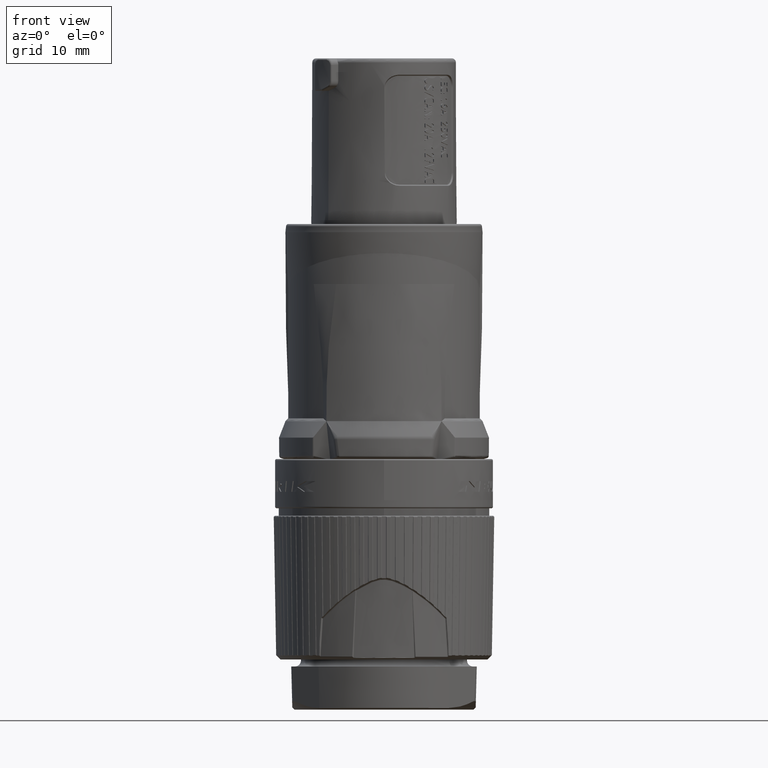
[diagram: clean part render]
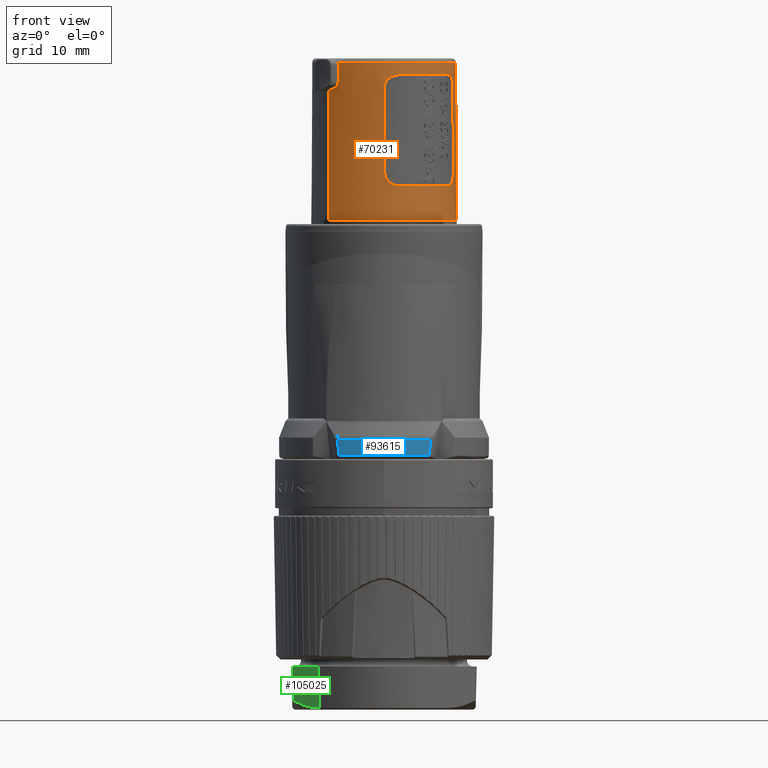
[diagram: same view with three faces highlighted in distinct colors, each labeled with its STEP entity id]
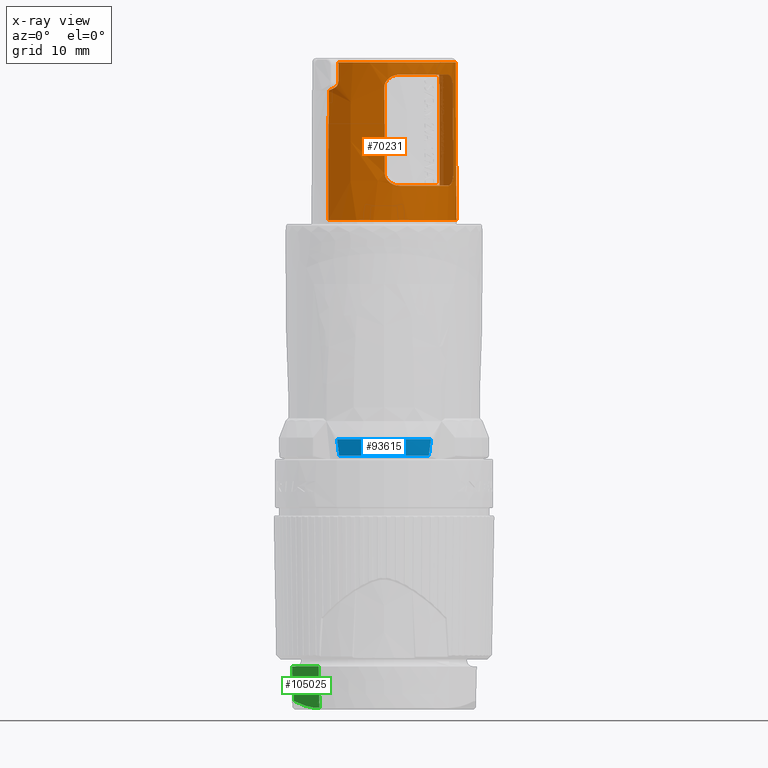
[diagram: x-ray of the same camera — body ghosted, the three highlighted faces saturated]
A machine part, front view with three faces highlighted in distinct colors.
The next image is the same camera in x-ray (body ghosted, the three faces saturated) — at least one of them is partly hidden behind the body in this view.
Their STEP definitions:

[orange] entity #70231 — the highlighted conical surface has half-angle 0.291 deg.
#14179=DIRECTION('',(-3.888500381793E-3,-3.262839236016E-3,9.999871166395E-1));
#14180=VECTOR('',#14179,1.920278543477E1);
#14181=CARTESIAN_POINT('',(6.779493321603E0,5.688670345726E0,4.375E1));
#14182=LINE('',#14181,#14180);
#14223=DIRECTION('',(3.888500375087E-3,3.262839230569E-3,9.999871166395E-1));
#14224=VECTOR('',#14223,1.575020291554E1);
#14225=CARTESIAN_POINT('',(-6.779493321603E0,-5.688670345726E0,4.375E1));
#14226=LINE('',#14225,#14224);
#15667=CARTESIAN_POINT('',(-6.718248651658E0,-5.637279965764E0,5.95E1));
#15668=CARTESIAN_POINT('',(-6.486914233155E0,-5.911941423735E0,
5.963070235955E1));
#15669=CARTESIAN_POINT('',(-6.239539094507E0,-6.171539255051E0,
5.976095753386E1));
#15670=CARTESIAN_POINT('',(-5.976079682787E0,-6.416032559735E0,
5.989076430876E1));
#15672=CARTESIAN_POINT('',(-5.572518550833E0,-6.764549923664E0,
6.064251840539E1));
#15673=CARTESIAN_POINT('',(-5.569872010561E0,-6.762329212698E0,
6.131167893729E1));
#15674=CARTESIAN_POINT('',(-5.567225417244E0,-6.760108457222E0,
6.198083946882E1));
#15675=CARTESIAN_POINT('',(-5.564578770691E0,-6.757887657075E0,6.265E1));
#15677=CARTESIAN_POINT('',(0.E0,0.E0,4.375E1));
#15678=DIRECTION('',(0.E0,0.E0,1.E0));
#15679=DIRECTION('',(-7.660444431190E-1,-6.427876096865E-1,0.E0));
#15680=AXIS2_PLACEMENT_3D('',#15677,#15678,#15679);
#15682=CARTESIAN_POINT('',(0.E0,0.E0,6.145E1));
#15683=DIRECTION('',(0.E0,0.E0,1.E0));
#15684=DIRECTION('',(2.095094920407E-1,-9.778066131628E-1,0.E0));
#15685=AXIS2_PLACEMENT_3D('',#15682,#15683,#15684);
#15687=CARTESIAN_POINT('',(4.664470165276E-2,-8.767642421188E0,5.995E1));
#15688=CARTESIAN_POINT('',(4.645496071429E-2,-8.767416296743E0,
5.999474474216E1));
#15689=CARTESIAN_POINT('',(5.138081998887E-2,-8.766931814082E0,
6.008545218689E1));
#15690=CARTESIAN_POINT('',(7.448804451609E-2,-8.766098351076E0,
6.021984638071E1));
#15691=CARTESIAN_POINT('',(1.148813528069E-1,-8.764992257855E0,
6.035705812692E1));
#15692=CARTESIAN_POINT('',(1.712850412430E-1,-8.763428296950E0,
6.048959903722E1));
#15693=CARTESIAN_POINT('',(2.398152590858E-1,-8.761226377869E0,
6.061260775500E1));
#15694=CARTESIAN_POINT('',(3.468360434481E-1,-8.757069281124E0,
6.076708102872E1));
#15695=CARTESIAN_POINT('',(5.049281415318E-1,-8.748978440850E0,
6.093895686496E1));
#15696=CARTESIAN_POINT('',(7.207627276283E-1,-8.733184868509E0,
6.110987730197E1));
#15697=CARTESIAN_POINT('',(9.232764088485E-1,-8.713264047921E0,
6.122775248172E1));
#15698=CARTESIAN_POINT('',(1.100433399368E0,-8.691851609113E0,
6.130669738530E1));
#15699=CARTESIAN_POINT('',(1.239177522588E0,-8.672945233489E0,
6.135694784792E1));
#15700=CARTESIAN_POINT('',(1.387112166539E0,-8.650349766249E0,
6.139843508540E1));
#15701=CARTESIAN_POINT('',(1.588500934638E0,-8.616041062179E0,
6.143831632575E1));
#15702=CARTESIAN_POINT('',(1.736946742981E0,-8.586815983257E0,6.145E1));
#15703=CARTESIAN_POINT('',(1.835335055275E0,-8.565734835866E0,6.145E1));
#15705=CARTESIAN_POINT('',(9.107785064836E-2,-8.820595786134E0,4.945E1));
#15706=CARTESIAN_POINT('',(8.613525342780E-2,-8.814705428140E0,
5.062039207447E1));
#15707=CARTESIAN_POINT('',(7.625380540986E-2,-8.802929176964E0,
5.295869255962E1));
#15708=CARTESIAN_POINT('',(6.144281591168E-2,-8.785278127020E0,
5.645868752727E1));
#15709=CARTESIAN_POINT('',(5.157618575402E-2,-8.773519535083E0,
5.878705653419E1));
#15710=CARTESIAN_POINT('',(4.664470165276E-2,-8.767642421188E0,5.995E1));
#15712=CARTESIAN_POINT('',(1.885126139758E0,-8.625073539678E0,4.795E1));
#15713=CARTESIAN_POINT('',(1.790972679281E0,-8.645652048218E0,4.795E1));
#15714=CARTESIAN_POINT('',(1.599687357706E0,-8.684208645756E0,
4.796423375218E1));
#15715=CARTESIAN_POINT('',(1.301989885527E0,-8.733359553650E0,
4.803338357670E1));
#15716=CARTESIAN_POINT('',(1.026756633509E0,-8.769115027864E0,
4.814277295336E1));
#15717=CARTESIAN_POINT('',(7.759322035667E-1,-8.793859917269E0,
4.828694305028E1));
#15718=CARTESIAN_POINT('',(5.561303196893E-1,-8.809346795392E0,
4.846046331019E1));
#15719=CARTESIAN_POINT('',(3.976016654183E-1,-8.816572724613E0,
4.863201020382E1));
#15720=CARTESIAN_POINT('',(2.901395178260E-1,-8.819772934917E0,
4.878559007169E1));
#15721=CARTESIAN_POINT('',(2.210271739812E-1,-8.821126356020E0,
4.890777417433E1));
#15722=CARTESIAN_POINT('',(1.631565954887E-1,-8.821681541520E0,
4.904090155417E1));
#15723=CARTESIAN_POINT('',(1.213421105508E-1,-8.821626902209E0,
4.917894822490E1));
#15724=CARTESIAN_POINT('',(9.699549884561E-2,-8.821227792963E0,
4.931389086103E1));
#15725=CARTESIAN_POINT('',(9.126769873064E-2,-8.820822038268E0,
4.940504454825E1));
#15726=CARTESIAN_POINT('',(9.107785064836E-2,-8.820595786134E0,4.945E1));
#15728=CARTESIAN_POINT('',(0.E0,0.E0,4.795E1));
#15729=DIRECTION('',(0.E0,0.E0,1.E0));
#15730=DIRECTION('',(2.135229837760E-1,-9.769380407167E-1,0.E0));
#15731=AXIS2_PLACEMENT_3D('',#15728,#15729,#15730);
#15733=CARTESIAN_POINT('',(8.434128273350E0,-2.583928301235E0,4.945E1));
#15734=CARTESIAN_POINT('',(8.434314831747E0,-2.584150632875E0,
4.940203012260E1));
#15735=CARTESIAN_POINT('',(8.433052478891E0,-2.589969925326E0,
4.930446384147E1));
#15736=CARTESIAN_POINT('',(8.426214671768E0,-2.614667738624E0,
4.915979897387E1));
#15737=CARTESIAN_POINT('',(8.413717824123E0,-2.657209868332E0,
4.901162746857E1));
#15738=CARTESIAN_POINT('',(8.395648949401E0,-2.716230756340E0,
4.886875758937E1));
#15739=CARTESIAN_POINT('',(8.372958778501E0,-2.787623939722E0,
4.873672064903E1));
#15740=CARTESIAN_POINT('',(8.336311151549E0,-2.898688557210E0,
4.857197824617E1));
#15741=CARTESIAN_POINT('',(8.279500654399E0,-3.061378944232E0,
4.839184052031E1));
#15742=CARTESIAN_POINT('',(8.196125214584E0,-3.281235257513E0,
4.821763296673E1));
#15743=CARTESIAN_POINT('',(8.091119602308E0,-3.535092602082E0,
4.807658679602E1));
#15744=CARTESIAN_POINT('',(7.960132673370E0,-3.823357251325E0,
4.797764666119E1));
#15745=CARTESIAN_POINT('',(7.851066696807E0,-4.040093038303E0,4.795E1));
#15746=CARTESIAN_POINT('',(7.791572428103E0,-4.151745804511E0,4.795E1));
#15748=CARTESIAN_POINT('',(8.434128273350E0,-2.583928301235E0,4.945E1));
#15749=CARTESIAN_POINT('',(8.429578801387E0,-2.578506451679E0,
5.061980857367E1));
#15750=CARTESIAN_POINT('',(8.420484138775E0,-2.567667854837E0,
5.295733107725E1));
#15751=CARTESIAN_POINT('',(8.406854963535E0,-2.551425236281E0,
5.645732772595E1));
#15752=CARTESIAN_POINT('',(8.397777342476E0,-2.540606948772E0,
5.878647377057E1));
#15753=CARTESIAN_POINT('',(8.393240651575E0,-2.535200331092E0,5.995E1));
#15755=CARTESIAN_POINT('',(7.744051003602E0,-4.095111976137E0,6.145E1));
#15756=CARTESIAN_POINT('',(7.802778050614E0,-3.984056344447E0,6.145E1));
#15757=CARTESIAN_POINT('',(7.910787367934E0,-3.768350392788E0,
6.142280093856E1));
#15758=CARTESIAN_POINT('',(8.041411823803E0,-3.480792577692E0,
6.132482911086E1));
#15759=CARTESIAN_POINT('',(8.146973324348E0,-3.226797974843E0,
6.118429588279E1));
#15760=CARTESIAN_POINT('',(8.231491316039E0,-3.006374282906E0,
6.100972537502E1));
#15761=CARTESIAN_POINT('',(8.289509032650E0,-2.843622994627E0,
6.082874898898E1));
#15762=CARTESIAN_POINT('',(8.327226239410E0,-2.733080897232E0,
6.066326844733E1));
#15763=CARTESIAN_POINT('',(8.350770710228E0,-2.662370734141E0,
6.053072219121E1));
#15764=CARTESIAN_POINT('',(8.369808161081E0,-2.604237935268E0,
6.038710351974E1));
#15765=CARTESIAN_POINT('',(8.383289217261E0,-2.562981834114E0,
6.023845988818E1));
#15766=CARTESIAN_POINT('',(8.391084172948E0,-2.539814375360E0,
6.009431147466E1));
#15767=CARTESIAN_POINT('',(8.393055499118E0,-2.534979674986E0,
5.999748609607E1));
#15768=CARTESIAN_POINT('',(8.393240651575E0,-2.535200331092E0,5.995E1));
#15784=CARTESIAN_POINT('',(-5.572518550833E0,-6.764549923664E0,
6.064251840539E1));
#15785=CARTESIAN_POINT('',(-5.572771926823E0,-6.764762531364E0,
6.057845393084E1));
#15786=CARTESIAN_POINT('',(-5.585226366163E0,-6.755384467904E0,
6.044969020250E1));
#15787=CARTESIAN_POINT('',(-5.641924943531E0,-6.709495662968E0,
6.026288612822E1));
#15788=CARTESIAN_POINT('',(-5.728168443806E0,-6.637319491212E0,
6.010417331852E1));
#15789=CARTESIAN_POINT('',(-5.843563275689E0,-6.537110850754E0,
5.997217459157E1));
#15790=CARTESIAN_POINT('',(-5.930967181067E0,-6.457897469992E0,
5.991299129363E1));
#15791=CARTESIAN_POINT('',(-5.976079682786E0,-6.416032559735E0,
5.989076430877E1));
#20142=CARTESIAN_POINT('',(0.E0,0.E0,6.295253803837E1));
#20143=DIRECTION('',(0.E0,0.E0,-1.E0));
#20144=DIRECTION('',(7.660444431190E-1,6.427876096865E-1,0.E0));
#20145=AXIS2_PLACEMENT_3D('',#20142,#20143,#20144);
#20157=CARTESIAN_POINT('',(-5.609871487359E0,-6.718336032897E0,
6.295253803837E1));
#20158=CARTESIAN_POINT('',(-5.594747158839E0,-6.731282917038E0,
6.290446187352E1));
#20159=CARTESIAN_POINT('',(-5.571805513480E0,-6.750931477452E0,
6.280469417689E1));
#20160=CARTESIAN_POINT('',(-5.564375119650E0,-6.757716773562E0,
6.270148977610E1));
#20161=CARTESIAN_POINT('',(-5.564578770691E0,-6.757887657075E0,6.265E1));
#43029=CARTESIAN_POINT('',(-6.779493321603E0,-5.688670345726E0,4.375E1));
#43030=CARTESIAN_POINT('',(6.779493321603E0,5.688670345726E0,4.375E1));
#43031=VERTEX_POINT('',#43029);
#43032=VERTEX_POINT('',#43030);
#43045=CARTESIAN_POINT('',(-6.718248651658E0,-5.637279965764E0,5.95E1));
#43046=VERTEX_POINT('',#43045);
#43110=CARTESIAN_POINT('',(6.704823283108E0,5.626014743968E0,6.295253803837E1));
#43111=VERTEX_POINT('',#43110);
#43349=CARTESIAN_POINT('',(-5.976079682786E0,-6.416032559735E0,
5.989076430877E1));
#43351=VERTEX_POINT('',#43349);
#43353=CARTESIAN_POINT('',(-5.572518550833E0,-6.764549923664E0,
6.064251840539E1));
#43354=VERTEX_POINT('',#43353);
#43384=CARTESIAN_POINT('',(-5.564578770691E0,-6.757887657075E0,6.265E1));
#43385=VERTEX_POINT('',#43384);
#43390=CARTESIAN_POINT('',(-5.609871487200E0,-6.718336032706E0,
6.295253803837E1));
#43391=VERTEX_POINT('',#43390);
#43546=CARTESIAN_POINT('',(1.835335055275E0,-8.565734835866E0,6.145E1));
#43547=CARTESIAN_POINT('',(7.744051003602E0,-4.095111976137E0,6.145E1));
#43548=VERTEX_POINT('',#43546);
#43549=VERTEX_POINT('',#43547);
#43554=VERTEX_POINT('',#15768);
#43556=VERTEX_POINT('',#15748);
#43558=VERTEX_POINT('',#15746);
#43560=CARTESIAN_POINT('',(1.885126139758E0,-8.625073539678E0,4.795E1));
#43561=VERTEX_POINT('',#43560);
#43564=VERTEX_POINT('',#15726);
#43566=VERTEX_POINT('',#15710);
#70193=CARTESIAN_POINT('',(0.E0,0.E0,5.335126901918E1));
#70194=DIRECTION('',(0.E0,0.E0,-1.E0));
#70195=DIRECTION('',(7.660444431190E-1,6.427876096865E-1,0.E0));
#70196=AXIS2_PLACEMENT_3D('',#70193,#70194,#70195);
#70197=CONICAL_SURFACE('',#70196,8.801262593811E0,2.908390223506E-1);
#70199=ORIENTED_EDGE('',*,*,#70198,.T.);
#70201=ORIENTED_EDGE('',*,*,#70200,.F.);
#70203=ORIENTED_EDGE('',*,*,#70202,.T.);
#70205=ORIENTED_EDGE('',*,*,#70204,.F.);
#70207=ORIENTED_EDGE('',*,*,#70206,.F.);
#70208=ORIENTED_EDGE('',*,*,#68032,.F.);
#70209=ORIENTED_EDGE('',*,*,#68107,.F.);
#70210=ORIENTED_EDGE('',*,*,#68064,.T.);
#70211=EDGE_LOOP('',(#70199,#70201,#70203,#70205,#70207,#70208,#70209,#70210));
#70212=FACE_OUTER_BOUND('',#70211,.F.);
#70214=ORIENTED_EDGE('',*,*,#70213,.F.);
#70216=ORIENTED_EDGE('',*,*,#70215,.F.);
#70218=ORIENTED_EDGE('',*,*,#70217,.F.);
#70220=ORIENTED_EDGE('',*,*,#70219,.F.);
#70222=ORIENTED_EDGE('',*,*,#70221,.T.);
#70224=ORIENTED_EDGE('',*,*,#70223,.F.);
#70226=ORIENTED_EDGE('',*,*,#70225,.T.);
#70228=ORIENTED_EDGE('',*,*,#70227,.F.);
#70229=EDGE_LOOP('',(#70214,#70216,#70218,#70220,#70222,#70224,#70226,#70228));
#70230=FACE_BOUND('',#70229,.F.);
#70231=ADVANCED_FACE('',(#70212,#70230),#70197,.T.);
#15671=B_SPLINE_CURVE_WITH_KNOTS('',3,(#15667,#15668,#15669,#15670),
.UNSPECIFIED.,.F.,.F.,(4,4),(0.E0,1.E0),.UNSPECIFIED.);
#15676=B_SPLINE_CURVE_WITH_KNOTS('',3,(#15672,#15673,#15674,#15675),
.UNSPECIFIED.,.F.,.F.,(4,4),(0.E0,1.E0),.UNSPECIFIED.);
#15681=CIRCLE('',#15680,8.85E0);
#15686=CIRCLE('',#15685,8.760152284264E0);
#15704=B_SPLINE_CURVE_WITH_KNOTS('',3,(#15687,#15688,#15689,#15690,#15691,
#15692,#15693,#15694,#15695,#15696,#15697,#15698,#15699,#15700,#15701,#15702,
#15703),.UNSPECIFIED.,.F.,.F.,(4,1,1,1,1,1,1,1,1,1,1,1,1,1,4),(0.E0,
5.555555555556E-2,1.111111111111E-1,1.666666666667E-1,2.222222222222E-1,
2.777777777778E-1,3.333333333333E-1,4.444444444444E-1,5.555555555556E-1,
6.666666666667E-1,7.222222222222E-1,7.777777777778E-1,8.333333333333E-1,
8.888888888889E-1,1.E0),.UNSPECIFIED.);
#15711=B_SPLINE_CURVE_WITH_KNOTS('',3,(#15705,#15706,#15707,#15708,#15709,
#15710),.UNSPECIFIED.,.F.,.F.,(4,1,1,4),(0.E0,3.333333333333E-1,
6.666666666667E-1,1.E0),.UNSPECIFIED.);
#15727=B_SPLINE_CURVE_WITH_KNOTS('',3,(#15712,#15713,#15714,#15715,#15716,
#15717,#15718,#15719,#15720,#15721,#15722,#15723,#15724,#15725,#15726),
.UNSPECIFIED.,.F.,.F.,(4,1,1,1,1,1,1,1,1,1,1,1,4),(0.E0,1.111111111111E-1,
2.222222222222E-1,3.333333333333E-1,4.444444444444E-1,5.555555555556E-1,
6.666666666667E-1,7.222222222222E-1,7.777777777778E-1,8.333333333333E-1,
8.888888888889E-1,9.444444444444E-1,1.E0),.UNSPECIFIED.);
#15732=CIRCLE('',#15731,8.828680203046E0);
#15747=B_SPLINE_CURVE_WITH_KNOTS('',3,(#15733,#15734,#15735,#15736,#15737,
#15738,#15739,#15740,#15741,#15742,#15743,#15744,#15745,#15746),.UNSPECIFIED.,
.F.,.F.,(4,1,1,1,1,1,1,1,1,1,1,4),(0.E0,6.25E-2,1.25E-1,1.875E-1,2.5E-1,
3.125E-1,3.75E-1,5.E-1,6.25E-1,7.5E-1,8.75E-1,1.E0),.UNSPECIFIED.);
#15754=B_SPLINE_CURVE_WITH_KNOTS('',3,(#15748,#15749,#15750,#15751,#15752,
#15753),.UNSPECIFIED.,.F.,.F.,(4,1,1,4),(0.E0,3.333333333333E-1,
6.666666666667E-1,1.E0),.UNSPECIFIED.);
#15769=B_SPLINE_CURVE_WITH_KNOTS('',3,(#15755,#15756,#15757,#15758,#15759,
#15760,#15761,#15762,#15763,#15764,#15765,#15766,#15767,#15768),.UNSPECIFIED.,
.F.,.F.,(4,1,1,1,1,1,1,1,1,1,1,4),(0.E0,1.25E-1,2.5E-1,3.75E-1,5.E-1,6.25E-1,
6.875E-1,7.5E-1,8.125E-1,8.75E-1,9.375E-1,1.E0),.UNSPECIFIED.);
#15792=B_SPLINE_CURVE_WITH_KNOTS('',3,(#15784,#15785,#15786,#15787,#15788,
#15789,#15790,#15791),.UNSPECIFIED.,.F.,.F.,(4,1,1,1,1,4),(0.E0,2.E-1,4.E-1,
6.E-1,8.E-1,1.E0),.UNSPECIFIED.);
#20146=CIRCLE('',#20145,8.752525187125E0);
#20162=B_SPLINE_CURVE_WITH_KNOTS('',3,(#20157,#20158,#20159,#20160,#20161),
.UNSPECIFIED.,.F.,.F.,(4,1,4),(0.E0,5.E-1,1.E0),.UNSPECIFIED.);
#68032=EDGE_CURVE('',#43032,#43111,#14182,.T.);
#68064=EDGE_CURVE('',#43031,#43046,#14226,.T.);
#68107=EDGE_CURVE('',#43031,#43032,#15681,.T.);
#70198=EDGE_CURVE('',#43046,#43351,#15671,.T.);
#70200=EDGE_CURVE('',#43354,#43351,#15792,.T.);
#70202=EDGE_CURVE('',#43354,#43385,#15676,.T.);
#70204=EDGE_CURVE('',#43391,#43385,#20162,.T.);
#70206=EDGE_CURVE('',#43111,#43391,#20146,.T.);
#70213=EDGE_CURVE('',#43548,#43549,#15686,.T.);
#70215=EDGE_CURVE('',#43566,#43548,#15704,.T.);
#70217=EDGE_CURVE('',#43564,#43566,#15711,.T.);
#70219=EDGE_CURVE('',#43561,#43564,#15727,.T.);
#70221=EDGE_CURVE('',#43561,#43558,#15732,.T.);
#70223=EDGE_CURVE('',#43556,#43558,#15747,.T.);
#70225=EDGE_CURVE('',#43556,#43554,#15754,.T.);
#70227=EDGE_CURVE('',#43549,#43554,#15769,.T.);

[blue] entity #93615 — the highlighted cylindrical surface (partial cylindrical patch) has radius 12.8 mm, axis along (0, 0, -1).
#32979=CARTESIAN_POINT('',(0.E0,0.E0,1.509814728882E1));
#32980=DIRECTION('',(0.E0,0.E0,-1.E0));
#32981=DIRECTION('',(4.256633479155E-1,-9.048816023334E-1,0.E0));
#32982=AXIS2_PLACEMENT_3D('',#32979,#32980,#32981);
#32984=CARTESIAN_POINT('',(-5.710825533064E0,-1.145541233352E1,
1.709406239473E1));
#32985=CARTESIAN_POINT('',(-5.668164244537E0,-1.147668011161E1,
1.677258739941E1));
#32986=CARTESIAN_POINT('',(-5.581765126177E0,-1.151915717836E1,
1.611846334824E1));
#32987=CARTESIAN_POINT('',(-5.493259482214E0,-1.156142498708E1,
1.544198062143E1));
#32988=CARTESIAN_POINT('',(-5.448490882483E0,-1.158248451350E1,
1.509814731283E1));
#32990=CARTESIAN_POINT('',(-5.705845104963E0,-1.145789385700E1,
1.710741769532E1));
#32991=CARTESIAN_POINT('',(-5.706229311141E0,-1.145770252855E1,
1.710741770356E1));
#32992=CARTESIAN_POINT('',(-5.706938758061E0,-1.145734918676E1,
1.710736621444E1));
#32993=CARTESIAN_POINT('',(-5.707794640213E0,-1.145692282429E1,
1.710716899179E1));
#32994=CARTESIAN_POINT('',(-5.708536867476E0,-1.145655301696E1,
1.710685892405E1));
#32995=CARTESIAN_POINT('',(-5.709174059302E0,-1.145623549450E1,
1.710643720727E1));
#32996=CARTESIAN_POINT('',(-5.709727160875E0,-1.145595984011E1,
1.710589412416E1));
#32997=CARTESIAN_POINT('',(-5.710203539158E0,-1.145572239631E1,
1.710521108703E1));
#32998=CARTESIAN_POINT('',(-5.710606027591E0,-1.145552176257E1,
1.710435835500E1));
#32999=CARTESIAN_POINT('',(-5.710931672585E0,-1.145535942099E1,
1.710328344649E1));
#33000=CARTESIAN_POINT('',(-5.711167879617E0,-1.145524165890E1,
1.710190567002E1));
#33001=CARTESIAN_POINT('',(-5.711282724569E0,-1.145518440001E1,
1.710008077399E1));
#33002=CARTESIAN_POINT('',(-5.711225526076E0,-1.145521291811E1,
1.709766365759E1));
#33003=CARTESIAN_POINT('',(-5.710997698870E0,-1.145532650431E1,
1.709535984498E1));
#33004=CARTESIAN_POINT('',(-5.710825533064E0,-1.145541233352E1,
1.709406239473E1));
#33006=CARTESIAN_POINT('',(0.E0,0.E0,1.710741761010E1));
#33007=DIRECTION('',(0.E0,0.E0,-1.E0));
#33008=DIRECTION('',(4.457691580401E-1,-8.951479529889E-1,0.E0));
#33009=AXIS2_PLACEMENT_3D('',#33006,#33007,#33008);
#33011=CARTESIAN_POINT('',(5.710825663409E0,-1.145541226854E1,
1.709406236222E1));
#33012=CARTESIAN_POINT('',(5.710985897378E0,-1.145533238766E1,
1.709526988106E1));
#33013=CARTESIAN_POINT('',(5.711204727170E0,-1.145522328788E1,
1.709742581645E1));
#33014=CARTESIAN_POINT('',(5.711282141584E0,-1.145518469066E1,
1.709973278892E1));
#33015=CARTESIAN_POINT('',(5.711204113500E0,-1.145522359369E1,
1.710151999598E1));
#33016=CARTESIAN_POINT('',(5.711009687108E0,-1.145532052706E1,
1.710290912008E1));
#33017=CARTESIAN_POINT('',(5.710724432231E0,-1.145546273632E1,
1.710402043539E1));
#33018=CARTESIAN_POINT('',(5.710358087874E0,-1.145564535833E1,
1.710492174770E1));
#33019=CARTESIAN_POINT('',(5.709914448477E0,-1.145586649228E1,
1.710565593424E1));
#33020=CARTESIAN_POINT('',(5.709386839926E0,-1.145612945304E1,
1.710625304983E1));
#33021=CARTESIAN_POINT('',(5.708773158946E0,-1.145643527485E1,
1.710672432866E1));
#33022=CARTESIAN_POINT('',(5.708033037616E0,-1.145680405309E1,
1.710709031252E1));
#33023=CARTESIAN_POINT('',(5.707114330910E0,-1.145726173567E1,
1.710734571184E1));
#33024=CARTESIAN_POINT('',(5.706297625819E0,-1.145766850895E1,
1.710741774510E1));
#33025=CARTESIAN_POINT('',(5.705845222948E0,-1.145789379824E1,
1.710741773902E1));
#33027=CARTESIAN_POINT('',(5.448490850456E0,-1.158248450208E1,
1.509814730306E1));
#33028=CARTESIAN_POINT('',(5.489251895047E0,-1.156331017044E1,
1.541120151524E1));
#33029=CARTESIAN_POINT('',(5.573678507351E0,-1.152307106724E1,
1.605692312034E1));
#33030=CARTESIAN_POINT('',(5.664082372937E0,-1.147871503025E1,
1.674182759815E1));
#33031=CARTESIAN_POINT('',(5.710825663409E0,-1.145541226854E1,
1.709406236222E1));
#33043=CARTESIAN_POINT('',(-5.448490882483E0,-1.158248451350E1,
1.509814731283E1));
#39877=VERTEX_POINT('',#32990);
#39878=VERTEX_POINT('',#33004);
#39881=CARTESIAN_POINT('',(5.705845222913E0,-1.145789379826E1,
1.710741761010E1));
#39882=VERTEX_POINT('',#39881);
#39885=VERTEX_POINT('',#33011);
#39889=VERTEX_POINT('',#33043);
#39893=CARTESIAN_POINT('',(5.448490853318E0,-1.158248450987E1,
1.509814728882E1));
#39894=VERTEX_POINT('',#39893);
#93597=CARTESIAN_POINT('',(0.E0,0.E0,1.990249999553E1));
#93598=DIRECTION('',(0.E0,0.E0,-1.E0));
#93599=DIRECTION('',(1.E0,0.E0,0.E0));
#93600=AXIS2_PLACEMENT_3D('',#93597,#93598,#93599);
#93601=CYLINDRICAL_SURFACE('',#93600,1.28E1);
#93603=ORIENTED_EDGE('',*,*,#93602,.T.);
#93605=ORIENTED_EDGE('',*,*,#93604,.F.);
#93607=ORIENTED_EDGE('',*,*,#93606,.F.);
#93608=ORIENTED_EDGE('',*,*,#93587,.F.);
#93610=ORIENTED_EDGE('',*,*,#93609,.F.);
#93612=ORIENTED_EDGE('',*,*,#93611,.F.);
#93613=EDGE_LOOP('',(#93603,#93605,#93607,#93608,#93610,#93612));
#93614=FACE_OUTER_BOUND('',#93613,.F.);
#93615=ADVANCED_FACE('',(#93614),#93601,.T.);
#32983=CIRCLE('',#32982,1.28E1);
#32989=B_SPLINE_CURVE_WITH_KNOTS('',3,(#32984,#32985,#32986,#32987,#32988),
.UNSPECIFIED.,.F.,.F.,(4,1,4),(0.E0,5.E-1,1.E0),.UNSPECIFIED.);
#33005=B_SPLINE_CURVE_WITH_KNOTS('',3,(#32990,#32991,#32992,#32993,#32994,
#32995,#32996,#32997,#32998,#32999,#33000,#33001,#33002,#33003,#33004),
.UNSPECIFIED.,.F.,.F.,(4,1,1,1,1,1,1,1,1,1,1,1,4),(0.E0,8.333333333333E-2,
1.666666666667E-1,2.5E-1,3.333333333333E-1,4.166666666667E-1,5.E-1,
5.833333333333E-1,6.666666666667E-1,7.5E-1,8.333333333333E-1,9.166666666667E-1,
1.E0),.UNSPECIFIED.);
#33010=CIRCLE('',#33009,1.28E1);
#33026=B_SPLINE_CURVE_WITH_KNOTS('',3,(#33011,#33012,#33013,#33014,#33015,
#33016,#33017,#33018,#33019,#33020,#33021,#33022,#33023,#33024,#33025),
.UNSPECIFIED.,.F.,.F.,(4,1,1,1,1,1,1,1,1,1,1,1,4),(0.E0,8.333333333333E-2,
1.666666666667E-1,2.5E-1,3.333333333333E-1,4.166666666667E-1,5.E-1,
5.833333333333E-1,6.666666666667E-1,7.5E-1,8.333333333333E-1,9.166666666667E-1,
1.E0),.UNSPECIFIED.);
#33032=B_SPLINE_CURVE_WITH_KNOTS('',3,(#33027,#33028,#33029,#33030,#33031),
.UNSPECIFIED.,.F.,.F.,(4,1,4),(0.E0,5.E-1,1.E0),.UNSPECIFIED.);
#93587=EDGE_CURVE('',#39882,#39877,#33010,.T.);
#93602=EDGE_CURVE('',#39894,#39889,#32983,.T.);
#93604=EDGE_CURVE('',#39878,#39889,#32989,.T.);
#93606=EDGE_CURVE('',#39877,#39878,#33005,.T.);
#93609=EDGE_CURVE('',#39885,#39882,#33026,.T.);
#93611=EDGE_CURVE('',#39894,#39885,#33032,.T.);

[green] entity #105025 — the highlighted planar face has unit normal (-0.7076, -0.7062, -0.0262).
#38569=CARTESIAN_POINT('',(-7.953803166096E0,-7.938380441168E0,-1.055E1));
#38592=DIRECTION('',(7.064202298483E-1,-7.077926665776E-1,0.E0));
#38593=VECTOR('',#38592,4.564768095785E0);
#38594=CARTESIAN_POINT('',(-1.117844769352E1,-4.707471058344E0,-1.055E1));
#38595=LINE('',#38594,#38593);
#38669=CARTESIAN_POINT('',(-7.860305116840E0,-7.845063688163E0,
-1.559462198747E1));
#38684=DIRECTION('',(1.852785204569E-2,1.849192584038E-2,-9.996573249756E-1));
#38685=VECTOR('',#38684,5.046351246008E0);
#38686=CARTESIAN_POINT('',(-7.953803166096E0,-7.938380441168E0,-1.055E1));
#38687=LINE('',#38686,#38685);
#38946=CARTESIAN_POINT('',(-1.094535722945E1,-4.785165680831E0,
-1.475434574947E1));
#38947=CARTESIAN_POINT('',(-1.067378819956E1,-5.052000805689E0,
-1.489628605070E1));
#38948=CARTESIAN_POINT('',(-1.013903160143E1,-5.578622225585E0,
-1.514377682747E1));
#38949=CARTESIAN_POINT('',(-9.366425453317E0,-6.343075460752E0,
-1.540421202645E1));
#38950=CARTESIAN_POINT('',(-8.610482493933E0,-7.094715421056E0,
-1.555991437479E1));
#38951=CARTESIAN_POINT('',(-8.109424212293E0,-7.595460602894E0,
-1.559462198747E1));
#38952=CARTESIAN_POINT('',(-7.860305116840E0,-7.845063688163E0,
-1.559462198747E1));
#38954=CARTESIAN_POINT('',(-1.117844769352E1,-4.707471058344E0,-1.055E1));
#38955=CARTESIAN_POINT('',(-1.115245863707E1,-4.715978605876E0,
-1.102296253662E1));
#38956=CARTESIAN_POINT('',(-1.110054427459E1,-4.733073476650E0,
-1.196501234922E1));
#38957=CARTESIAN_POINT('',(-1.102285406631E1,-4.758965642363E0,
-1.336644517397E1));
#38958=CARTESIAN_POINT('',(-1.097117216804E1,-4.776401878061E0,
-1.429300255712E1));
#38959=CARTESIAN_POINT('',(-1.094535722945E1,-4.785165680831E0,
-1.475434574947E1));
#39949=VERTEX_POINT('',#38569);
#39953=VERTEX_POINT('',#38669);
#39955=CARTESIAN_POINT('',(-1.117844769352E1,-4.707471058344E0,-1.055E1));
#39956=VERTEX_POINT('',#39955);
#39971=VERTEX_POINT('',#38946);
#105014=CARTESIAN_POINT('',(-1.088670379948E1,-4.805172253141E0,-1.58E1));
#105015=DIRECTION('',(-7.075501237083E-1,-7.061781572788E-1,
-2.617694830787E-2));
#105016=DIRECTION('',(7.064202298483E-1,-7.077926665776E-1,0.E0));
#105017=AXIS2_PLACEMENT_3D('',#105014,#105015,#105016);
#105018=PLANE('',#105017);
#105019=ORIENTED_EDGE('',*,*,#104664,.F.);
#105020=ORIENTED_EDGE('',*,*,#105009,.F.);
#105021=ORIENTED_EDGE('',*,*,#104567,.T.);
#105022=ORIENTED_EDGE('',*,*,#104643,.T.);
#105023=EDGE_LOOP('',(#105019,#105020,#105021,#105022));
#105024=FACE_OUTER_BOUND('',#105023,.F.);
#105025=ADVANCED_FACE('',(#105024),#105018,.T.);
#38953=B_SPLINE_CURVE_WITH_KNOTS('',3,(#38946,#38947,#38948,#38949,#38950,
#38951,#38952),.UNSPECIFIED.,.F.,.F.,(4,1,1,1,4),(0.E0,2.5E-1,5.E-1,7.5E-1,
1.E0),.UNSPECIFIED.);
#38960=B_SPLINE_CURVE_WITH_KNOTS('',3,(#38954,#38955,#38956,#38957,#38958,
#38959),.UNSPECIFIED.,.F.,.F.,(4,1,1,4),(0.E0,3.333333333333E-1,
6.666666666667E-1,1.E0),.UNSPECIFIED.);
#104567=EDGE_CURVE('',#39956,#39949,#38595,.T.);
#104643=EDGE_CURVE('',#39949,#39953,#38687,.T.);
#104664=EDGE_CURVE('',#39971,#39953,#38953,.T.);
#105009=EDGE_CURVE('',#39956,#39971,#38960,.T.);